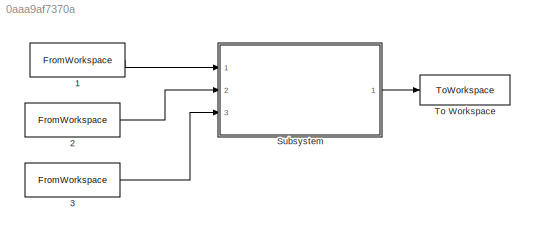
MODEL slx_0aaa9af7370a
KIND model
CONFIG AbsTol = auto
CONFIG EnableMultiTasking = off
CONFIG FixedStep = 1
CONFIG MaxStep = auto
CONFIG MinStep = auto
CONFIG RelTol = 1e-3
CONFIG SampleTimeConstraint = Unconstrained
CONFIG Solver = FixedStepDiscrete
CONFIG SolverName = FixedStepDiscrete
CONFIG StartTime = 0.0
CONFIG StopTime = 50
BLOCK [FromWorkspace] 1
  VariableName = key
BLOCK [FromWorkspace] 2
  VariableName = button
BLOCK [FromWorkspace] 3
  VariableName = rain_sensor
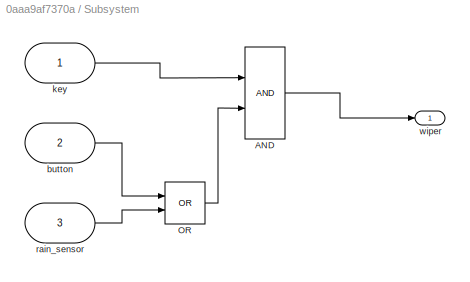
BLOCK [SubSystem] Subsystem
  Ports = [3, 1]
  RequestExecContextInheritance = off
BLOCK [Logic] Subsystem/AND
  AllPortsSameDT = off
  IconShape = distinctive
  OutDataTypeStr = boolean
  Ports = [2, 1]
BLOCK [Logic] Subsystem/OR
  AllPortsSameDT = off
  IconShape = distinctive
  Operator = OR
  OutDataTypeStr = boolean
  Ports = [2, 1]
BLOCK [Inport] Subsystem/button
  Port = 2
BLOCK [Inport] Subsystem/key
BLOCK [Inport] Subsystem/rain_sensor
  Port = 3
BLOCK [Outport] Subsystem/wiper
BLOCK [ToWorkspace] To Workspace
  FixptAsFi = on
  MaxDataPoints = inf
  Ports = [1]
  SampleTime = -1
  SaveFormat = Timeseries
  VariableName = Actuals
LINE 1:1 -> Subsystem:1
LINE 2:1 -> Subsystem:2
LINE 3:1 -> Subsystem:3
LINE Subsystem/AND:1 -> Subsystem/wiper:1
LINE Subsystem/OR:1 -> Subsystem/AND:2
LINE Subsystem/button:1 -> Subsystem/OR:1
LINE Subsystem/key:1 -> Subsystem/AND:1
LINE Subsystem/rain_sensor:1 -> Subsystem/OR:2
LINE Subsystem:1 -> To Workspace:1
